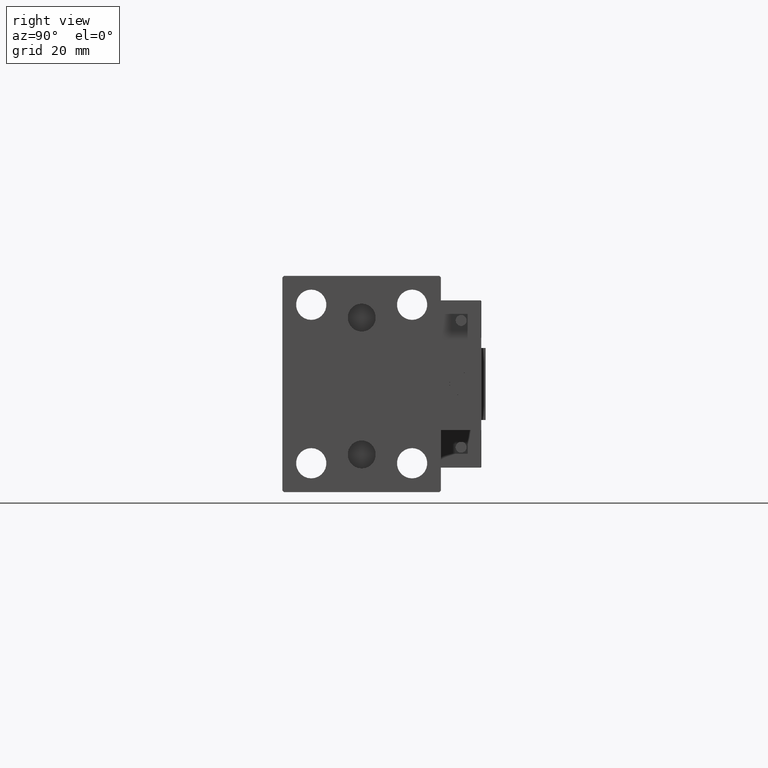
[diagram: clean part render]
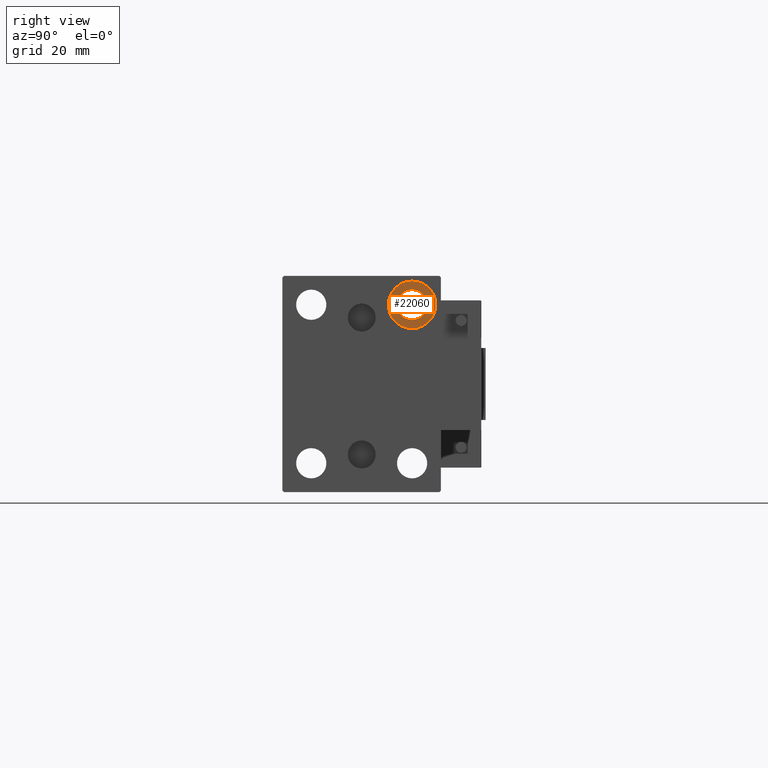
[diagram: same view with one face highlighted and labeled with its STEP entity id]
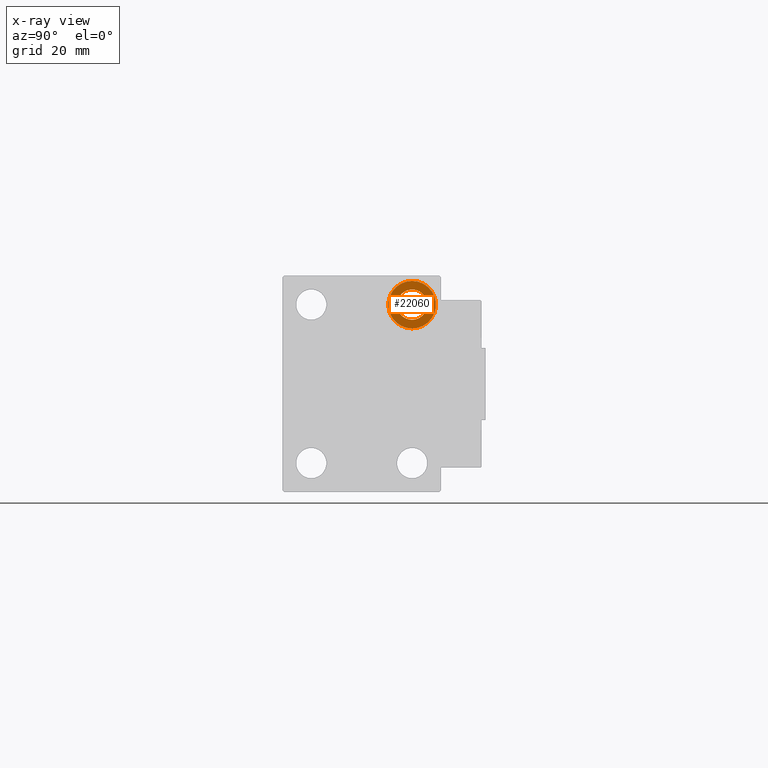
[diagram: x-ray of the same camera — body ghosted, the highlighted face saturated]
A machine part, right view. The second image highlights one B-rep face of the part: STEP entity #22060.
The next image is the same camera in x-ray: the body ghosted, the highlighted face saturated — about 0% of this face is hidden behind the body in this view.
In plain terms, the highlighted planar face has unit normal (1, 0, 0).
Its self-contained STEP definition (entity closure, byte-faithful):
#87 = EDGE_CURVE ( 'NONE', #35624, #50809, #22470, .T. ) ;
#2435 = CARTESIAN_POINT ( 'NONE',  ( 94.00000000000000000, 17.50000000000000355, 27.49999999999999645 ) ) ;
#2570 = EDGE_CURVE ( 'NONE', #27764, #16129, #20011, .T. ) ;
#2624 = DIRECTION ( 'NONE',  ( 0.000000000000000000, 0.000000000000000000, 1.000000000000000000 ) ) ;
#4627 = AXIS2_PLACEMENT_3D ( 'NONE', #13271, #45532, #9021 ) ;
#4867 = EDGE_CURVE ( 'NONE', #16129, #27764, #20802, .T. ) ;
#5536 = AXIS2_PLACEMENT_3D ( 'NONE', #2435, #15215, #7515 ) ;
#6762 = CARTESIAN_POINT ( 'NONE',  ( 94.00000000000000000, 17.50000000000000355, 35.74999999999999289 ) ) ;
#7515 = DIRECTION ( 'NONE',  ( 0.000000000000000000, 0.000000000000000000, -1.000000000000000000 ) ) ;
#9021 = DIRECTION ( 'NONE',  ( 0.000000000000000000, 0.000000000000000000, -1.000000000000000000 ) ) ;
#9201 = CARTESIAN_POINT ( 'NONE',  ( 94.00000000000000000, 17.50000000000000355, 22.25000000000000000 ) ) ;
#10075 = ORIENTED_EDGE ( 'NONE', *, *, #87, .F. ) ;
#11296 = ORIENTED_EDGE ( 'NONE', *, *, #2570, .T. ) ;
#12577 = ORIENTED_EDGE ( 'NONE', *, *, #39730, .F. ) ;
#13271 = CARTESIAN_POINT ( 'NONE',  ( 94.00000000000000000, 17.50000000000000355, 27.49999999999999645 ) ) ;
#14156 = AXIS2_PLACEMENT_3D ( 'NONE', #36794, #16801, #33046 ) ;
#15215 = DIRECTION ( 'NONE',  ( -1.000000000000000000, -0.000000000000000000, -0.000000000000000000 ) ) ;
#15913 = EDGE_LOOP ( 'NONE', ( #10075, #12577 ) ) ;
#16129 = VERTEX_POINT ( 'NONE', #9201 ) ;
#16801 = DIRECTION ( 'NONE',  ( -1.000000000000000000, -0.000000000000000000, -0.000000000000000000 ) ) ;
#20011 = CIRCLE ( 'NONE', #5536, 5.249999999999997335 ) ;
#20802 = CIRCLE ( 'NONE', #4627, 5.249999999999997335 ) ;
#22060 = ADVANCED_FACE ( 'NONE', ( #26464, #30466 ), #51014, .T. ) ;
#22470 = CIRCLE ( 'NONE', #38622, 8.249999999999992895 ) ;
#22486 = DIRECTION ( 'NONE',  ( 1.000000000000000000, 0.000000000000000000, -0.000000000000000000 ) ) ;
#22642 = CIRCLE ( 'NONE', #14156, 8.249999999999992895 ) ;
#23013 = DIRECTION ( 'NONE',  ( 0.000000000000000000, 0.000000000000000000, 1.000000000000000000 ) ) ;
#26217 = EDGE_LOOP ( 'NONE', ( #11296, #42781 ) ) ;
#26464 = FACE_OUTER_BOUND ( 'NONE', #15913, .T. ) ;
#27247 = CARTESIAN_POINT ( 'NONE',  ( 94.00000000000000000, 17.50000000000000355, 32.74999999999999289 ) ) ;
#27764 = VERTEX_POINT ( 'NONE', #27247 ) ;
#30466 = FACE_BOUND ( 'NONE', #26217, .T. ) ;
#30865 = DIRECTION ( 'NONE',  ( -1.000000000000000000, -0.000000000000000000, -0.000000000000000000 ) ) ;
#33046 = DIRECTION ( 'NONE',  ( 0.000000000000000000, 0.000000000000000000, 1.000000000000000000 ) ) ;
#35624 = VERTEX_POINT ( 'NONE', #46143 ) ;
#36794 = CARTESIAN_POINT ( 'NONE',  ( 94.00000000000000000, 17.50000000000000355, 27.49999999999999645 ) ) ;
#38622 = AXIS2_PLACEMENT_3D ( 'NONE', #47676, #30865, #2624 ) ;
#39730 = EDGE_CURVE ( 'NONE', #50809, #35624, #22642, .T. ) ;
#42781 = ORIENTED_EDGE ( 'NONE', *, *, #4867, .T. ) ;
#42996 = CARTESIAN_POINT ( 'NONE',  ( 94.00000000000000000, 0.000000000000000000, 0.000000000000000000 ) ) ;
#45532 = DIRECTION ( 'NONE',  ( -1.000000000000000000, -0.000000000000000000, -0.000000000000000000 ) ) ;
#46110 = AXIS2_PLACEMENT_3D ( 'NONE', #42996, #22486, #23013 ) ;
#46143 = CARTESIAN_POINT ( 'NONE',  ( 94.00000000000000000, 17.50000000000000355, 19.25000000000000000 ) ) ;
#47676 = CARTESIAN_POINT ( 'NONE',  ( 94.00000000000000000, 17.50000000000000355, 27.49999999999999645 ) ) ;
#50809 = VERTEX_POINT ( 'NONE', #6762 ) ;
#51014 = PLANE ( 'NONE',  #46110 ) ;